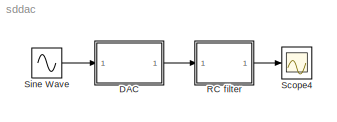
MODEL sddac
KIND model
CONFIG AbsTol = auto
CONFIG FixedStep = auto
CONFIG MaxStep = auto
CONFIG MinStep = auto
CONFIG RelTol = 1e-3
CONFIG Solver = ode45
CONFIG SolverMode = Auto
CONFIG StartTime = 0.0
CONFIG StopTime = 10.0
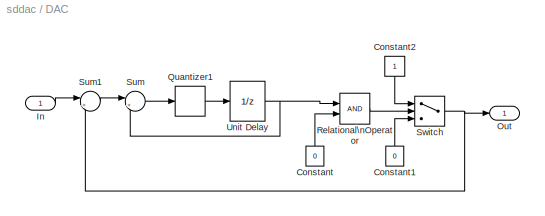
BLOCK [SubSystem] DAC
  Ports = [1, 1]
  TreatAsAtomicUnit = off
BLOCK [Constant] DAC/Constant
  Value = 0
BLOCK [Constant] DAC/Constant1
  Value = 0
BLOCK [Constant] DAC/Constant2
BLOCK [Inport] DAC/In
BLOCK [Outport] DAC/Out
BLOCK [Quantizer] DAC/Quantizer1
  QuantizationInterval = 2^-Nbits
BLOCK [RelationalOperator] DAC/Relational\nOperator
  InputSameDT = off
BLOCK [Sum] DAC/Sum
  IconShape = round
  InputSameDT = off
  Inputs = |++
  OutDataTypeMode = Inherit via internal rule
  Ports = [2, 1]
BLOCK [Sum] DAC/Sum1
  IconShape = round
  InputSameDT = off
  Inputs = |+-
  OutDataTypeMode = Inherit via internal rule
  Ports = [2, 1]
BLOCK [Switch] DAC/Switch
  InputSameDT = off
BLOCK [UnitDelay] DAC/Unit Delay
  SampleTime = Tdac
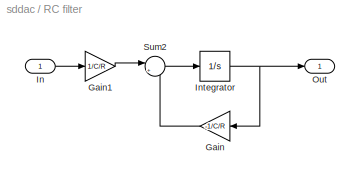
BLOCK [SubSystem] RC filter
  Ports = [1, 1]
  TreatAsAtomicUnit = off
BLOCK [Gain] RC filter/Gain
  Gain = -1/C/R
BLOCK [Gain] RC filter/Gain1
  Gain = 1/C/R
BLOCK [Inport] RC filter/In
BLOCK [Integrator] RC filter/Integrator
  InitialCondition = Vvcxo0
  Ports = [1, 1]
BLOCK [Outport] RC filter/Out
BLOCK [Sum] RC filter/Sum2
  IconShape = round
  InputSameDT = off
  Inputs = |++
  OutDataTypeMode = Inherit via internal rule
  Ports = [2, 1]
BLOCK [Scope] Scope4
  DataFormat = StructureWithTime
  LimitDataPoints = off
  NumInputPorts = 1
  Ports = [1]
  TimeRange = 10
  YMax = 0.105
  YMin = 0.02
BLOCK [Sin] Sine Wave
  Amplitude = 0.4
  Bias = .5
  Frequency = 100
  SampleTime = 0
  SineType = Time based
LINE DAC/Constant1:1 -> DAC/Switch:3
LINE DAC/Constant2:1 -> DAC/Switch:1
LINE DAC/Constant:1 -> DAC/Relational\nOperator:2
LINE DAC/In:1 -> DAC/Sum1:1
LINE DAC/Quantizer1:1 -> DAC/Unit Delay:1
LINE DAC/Relational\nOperator:1 -> DAC/Switch:2
LINE DAC/Sum1:1 -> DAC/Sum:1
LINE DAC/Sum:1 -> DAC/Quantizer1:1
NET DAC/Switch:1 -> DAC/Out:1, DAC/Sum1:2
NET DAC/Unit Delay:1 -> DAC/Relational\nOperator:1, DAC/Sum:2
LINE DAC:1 -> RC filter:1
LINE RC filter/Gain1:1 -> RC filter/Sum2:1
LINE RC filter/Gain:1 -> RC filter/Sum2:2
LINE RC filter/In:1 -> RC filter/Gain1:1
NET RC filter/Integrator:1 -> RC filter/Gain:1, RC filter/Out:1
LINE RC filter/Sum2:1 -> RC filter/Integrator:1
LINE RC filter:1 -> Scope4:1
LINE Sine Wave:1 -> DAC:1
note: NET lines group one-source signal fan-out (src -> all destinations, sorted); 1:1 wires keep LINE
